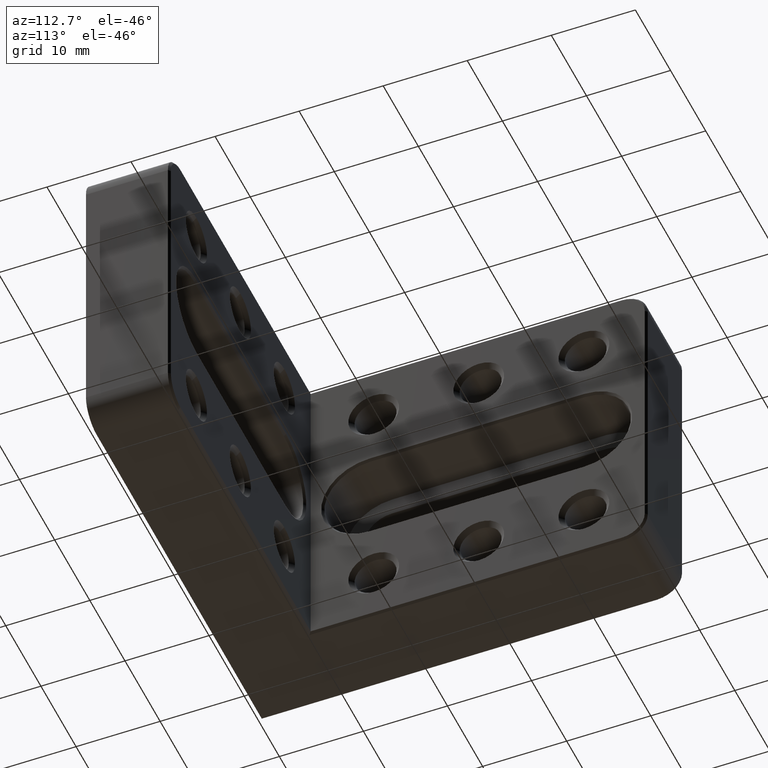
[diagram: clean part render]
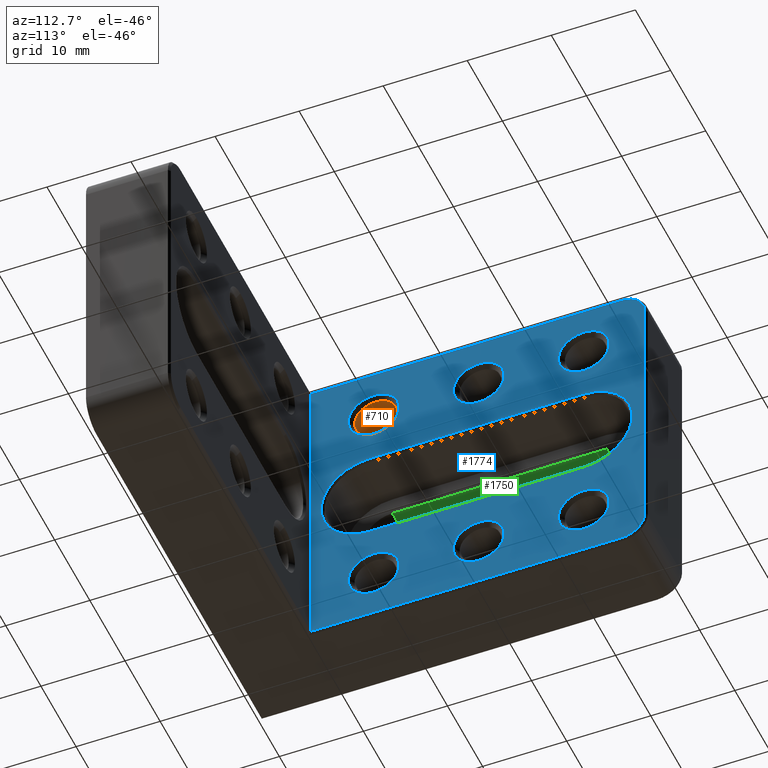
[diagram: same view with three faces highlighted in distinct colors, each labeled with its STEP entity id]
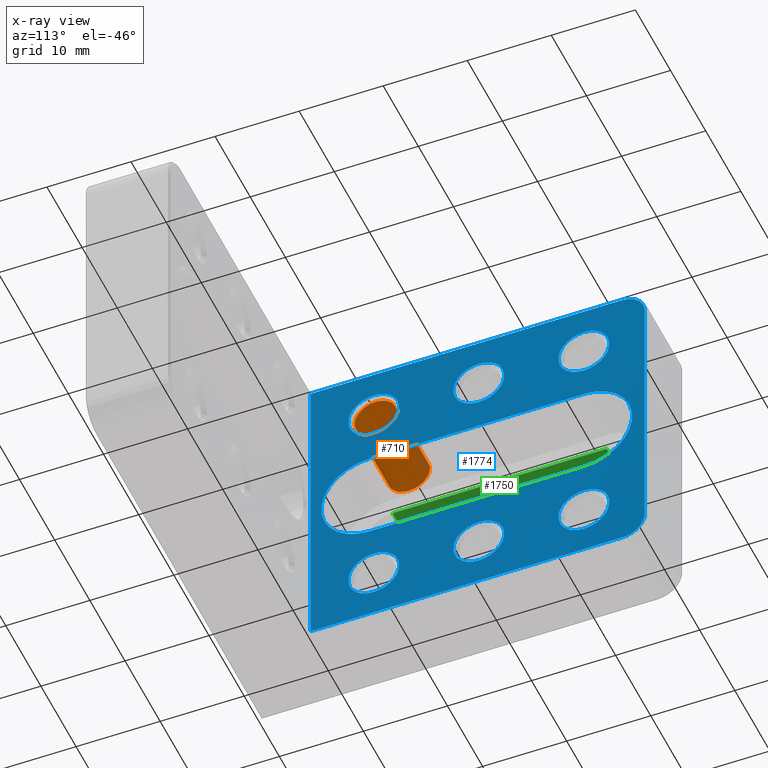
[diagram: x-ray of the same camera — body ghosted, the three highlighted faces saturated]
A machine part, auxiliary view with three faces highlighted in distinct colors.
The next image is the same camera in x-ray (body ghosted, the three faces saturated) — at least one of them is partly hidden behind the body in this view.
Their STEP definitions:

[orange] entity #710 — the highlighted cylindrical surface (bore or boss wall) has radius 2.5 mm, axis along (1, -0, -0).
#46 = CARTESIAN_POINT ( 'NONE',  ( -25.00000000000000711, 17.50000000000000000, 12.50000000000000355 ) ) ;
#205 = DIRECTION ( 'NONE',  ( 1.000000000000000000, -0.000000000000000000, -1.369518533665900312E-16 ) ) ;
#281 = DIRECTION ( 'NONE',  ( 0.000000000000000000, 0.000000000000000000, -1.000000000000000000 ) ) ;
#298 = VERTEX_POINT ( 'NONE', #599 ) ;
#368 = CARTESIAN_POINT ( 'NONE',  ( -15.52500000000003055, 17.50000000000000000, 12.50000000000000178 ) ) ;
#415 = AXIS2_PLACEMENT_3D ( 'NONE', #368, #205, #902 ) ;
#453 = AXIS2_PLACEMENT_3D ( 'NONE', #2067, #501, #611 ) ;
#455 = AXIS2_PLACEMENT_3D ( 'NONE', #46, #1346, #281 ) ;
#501 = DIRECTION ( 'NONE',  ( 1.000000000000000000, -0.000000000000000000, -1.369518533665900312E-16 ) ) ;
#556 = VERTEX_POINT ( 'NONE', #714 ) ;
#599 = CARTESIAN_POINT ( 'NONE',  ( -25.00000000000000711, 17.50000000000000000, 10.00000000000000533 ) ) ;
#611 = DIRECTION ( 'NONE',  ( 0.000000000000000000, 0.000000000000000000, -1.000000000000000000 ) ) ;
#627 = FACE_OUTER_BOUND ( 'NONE', #645, .T. ) ;
#645 = EDGE_LOOP ( 'NONE', ( #1151 ) ) ;
#710 = ADVANCED_FACE ( 'NONE', ( #627, #1765 ), #1597, .F. ) ;
#714 = CARTESIAN_POINT ( 'NONE',  ( -15.52500000000003055, 17.50000000000000000, 10.00000000000001421 ) ) ;
#831 = ORIENTED_EDGE ( 'NONE', *, *, #893, .T. ) ;
#893 = EDGE_CURVE ( 'NONE', #556, #556, #1068, .T. ) ;
#902 = DIRECTION ( 'NONE',  ( 0.000000000000000000, 0.000000000000000000, -1.000000000000000000 ) ) ;
#1068 = CIRCLE ( 'NONE', #415, 2.499999999999988454 ) ;
#1151 = ORIENTED_EDGE ( 'NONE', *, *, #1624, .F. ) ;
#1267 = EDGE_LOOP ( 'NONE', ( #831 ) ) ;
#1346 = DIRECTION ( 'NONE',  ( 1.000000000000000000, -0.000000000000000000, -1.369518533665900312E-16 ) ) ;
#1597 = CYLINDRICAL_SURFACE ( 'NONE', #453, 2.499999999999993339 ) ;
#1624 = EDGE_CURVE ( 'NONE', #298, #298, #2011, .T. ) ;
#1765 = FACE_OUTER_BOUND ( 'NONE', #1267, .T. ) ;
#2011 = CIRCLE ( 'NONE', #455, 2.499999999999998668 ) ;
#2067 = CARTESIAN_POINT ( 'NONE',  ( -15.00000000000000533, 17.50000000000000000, 12.50000000000000178 ) ) ;

[blue] entity #1774 — the highlighted planar face has unit normal (-1, 0, 0).
#21 = EDGE_CURVE ( 'NONE', #1565, #1565, #707, .T. ) ;
#42 = CARTESIAN_POINT ( 'NONE',  ( -15.00000000000000355, 10.00000000000000000, 18.75000000000000000 ) ) ;
#72 = CIRCLE ( 'NONE', #1840, 5.750000000000046185 ) ;
#89 = VERTEX_POINT ( 'NONE', #735 ) ;
#113 = CIRCLE ( 'NONE', #2076, 3.024999999999999911 ) ;
#124 = FACE_BOUND ( 'NONE', #1386, .T. ) ;
#132 = CARTESIAN_POINT ( 'NONE',  ( -15.00000000000000355, 42.50000000000000000, 9.475000000000003197 ) ) ;
#136 = EDGE_CURVE ( 'NONE', #1698, #1698, #1761, .T. ) ;
#137 = DIRECTION ( 'NONE',  ( 0.000000000000000000, -1.000000000000000000, 0.000000000000000000 ) ) ;
#142 = VERTEX_POINT ( 'NONE', #1212 ) ;
#152 = CARTESIAN_POINT ( 'NONE',  ( -15.00000000000000533, 17.00000000000000355, 5.750000000000044409 ) ) ;
#196 = DIRECTION ( 'NONE',  ( -2.329152893270168339E-32, -1.000000000000000000, -1.700709290173340903E-16 ) ) ;
#197 = ORIENTED_EDGE ( 'NONE', *, *, #1971, .T. ) ;
#221 = CARTESIAN_POINT ( 'NONE',  ( -15.00000000000000355, 49.75000000000000000, 16.00000000000000000 ) ) ;
#241 = CARTESIAN_POINT ( 'NONE',  ( -15.00000000000000888, 50.00000000000000000, -18.75000000000000000 ) ) ;
#247 = CARTESIAN_POINT ( 'NONE',  ( -15.00000000000000355, 47.00000000000000000, 16.00000000000000000 ) ) ;
#250 = VERTEX_POINT ( 'NONE', #152 ) ;
#260 = EDGE_CURVE ( 'NONE', #1826, #1940, #1606, .T. ) ;
#282 = DIRECTION ( 'NONE',  ( 0.000000000000000000, 0.000000000000000000, -1.000000000000000000 ) ) ;
#302 = FACE_BOUND ( 'NONE', #1410, .T. ) ;
#304 = DIRECTION ( 'NONE',  ( 0.000000000000000000, 0.000000000000000000, 1.000000000000000000 ) ) ;
#314 = FACE_BOUND ( 'NONE', #1189, .T. ) ;
#315 = ORIENTED_EDGE ( 'NONE', *, *, #614, .F. ) ;
#343 = EDGE_LOOP ( 'NONE', ( #1525 ) ) ;
#355 = AXIS2_PLACEMENT_3D ( 'NONE', #1459, #1278, #1107 ) ;
#375 = DIRECTION ( 'NONE',  ( 0.000000000000000000, 0.000000000000000000, -1.000000000000000000 ) ) ;
#424 = ORIENTED_EDGE ( 'NONE', *, *, #260, .T. ) ;
#425 = DIRECTION ( 'NONE',  ( 0.000000000000000000, 0.000000000000000000, 1.000000000000000000 ) ) ;
#471 = AXIS2_PLACEMENT_3D ( 'NONE', #797, #642, #958 ) ;
#473 = FACE_BOUND ( 'NONE', #1719, .T. ) ;
#482 = DIRECTION ( 'NONE',  ( 1.000000000000000000, -0.000000000000000000, -1.369518533665900312E-16 ) ) ;
#492 = DIRECTION ( 'NONE',  ( -1.000000000000000000, 0.000000000000000000, 1.369518533665900312E-16 ) ) ;
#494 = CARTESIAN_POINT ( 'NONE',  ( -15.00000000000000888, 47.00000000000000000, -18.75000000000000355 ) ) ;
#518 = VECTOR ( 'NONE', #1550, 1000.000000000000000 ) ;
#524 = AXIS2_PLACEMENT_3D ( 'NONE', #745, #585, #1397 ) ;
#541 = ORIENTED_EDGE ( 'NONE', *, *, #796, .T. ) ;
#562 = DIRECTION ( 'NONE',  ( 0.000000000000000000, 0.000000000000000000, -1.000000000000000000 ) ) ;
#578 = EDGE_CURVE ( 'NONE', #1341, #2064, #1305, .T. ) ;
#582 = DIRECTION ( 'NONE',  ( 1.369518533665900312E-16, 0.000000000000000000, 1.000000000000000000 ) ) ;
#585 = DIRECTION ( 'NONE',  ( -1.000000000000000000, 0.000000000000000000, 1.369518533665900312E-16 ) ) ;
#590 = VERTEX_POINT ( 'NONE', #1547 ) ;
#606 = CIRCLE ( 'NONE', #1598, 2.749999999999999112 ) ;
#614 = EDGE_CURVE ( 'NONE', #590, #590, #113, .T. ) ;
#618 = CARTESIAN_POINT ( 'NONE',  ( -15.00000000000000355, 30.00000000000000355, 12.50000000000000178 ) ) ;
#633 = LINE ( 'NONE', #1135, #1635 ) ;
#642 = DIRECTION ( 'NONE',  ( 1.000000000000000000, -0.000000000000000000, -1.369518533665900312E-16 ) ) ;
#650 = VECTOR ( 'NONE', #689, 1000.000000000000000 ) ;
#655 = VERTEX_POINT ( 'NONE', #1458 ) ;
#687 = AXIS2_PLACEMENT_3D ( 'NONE', #1121, #1461, #304 ) ;
#688 = EDGE_LOOP ( 'NONE', ( #950 ) ) ;
#689 = DIRECTION ( 'NONE',  ( -1.369518533665900312E-16, -0.000000000000000000, -1.000000000000000000 ) ) ;
#707 = CIRCLE ( 'NONE', #1929, 3.024999999999996358 ) ;
#708 = DIRECTION ( 'NONE',  ( 1.000000000000000000, -0.000000000000000000, 1.369518533665900312E-16 ) ) ;
#709 = EDGE_CURVE ( 'NONE', #880, #250, #72, .T. ) ;
#718 = DIRECTION ( 'NONE',  ( 1.000000000000000000, -0.000000000000000000, -1.369518533665900312E-16 ) ) ;
#727 = DIRECTION ( 'NONE',  ( 1.000000000000000000, -0.000000000000000000, 1.369518533665900312E-16 ) ) ;
#735 = CARTESIAN_POINT ( 'NONE',  ( -15.00000000000000355, 42.50000000000000000, -15.52500000000000213 ) ) ;
#745 = CARTESIAN_POINT ( 'NONE',  ( -15.00000000000000533, 42.50000000000000000, 2.054277800498851503E-15 ) ) ;
#770 = CARTESIAN_POINT ( 'NONE',  ( -15.00000000000000711, 17.00000000000000355, -1.402614629381893049E-15 ) ) ;
#778 = CARTESIAN_POINT ( 'NONE',  ( -15.00000000000000355, 17.50000000000000000, 9.475000000000003197 ) ) ;
#781 = FACE_OUTER_BOUND ( 'NONE', #852, .T. ) ;
#782 = ORIENTED_EDGE ( 'NONE', *, *, #1024, .T. ) ;
#790 = VERTEX_POINT ( 'NONE', #42 ) ;
#796 = EDGE_CURVE ( 'NONE', #790, #655, #1831, .T. ) ;
#797 = CARTESIAN_POINT ( 'NONE',  ( -15.00000000000000355, 42.50000000000000000, 12.50000000000000178 ) ) ;
#809 = EDGE_LOOP ( 'NONE', ( #315 ) ) ;
#819 = VECTOR ( 'NONE', #196, 1000.000000000000000 ) ;
#830 = CARTESIAN_POINT ( 'NONE',  ( -15.00000000000000888, 49.75000000000000000, -16.00000000000000000 ) ) ;
#852 = EDGE_LOOP ( 'NONE', ( #541, #1922, #424, #1771, #782, #1608 ) ) ;
#861 = CARTESIAN_POINT ( 'NONE',  ( -15.00000000000000711, 17.00000000000000355, -5.750000000000047962 ) ) ;
#877 = CIRCLE ( 'NONE', #471, 3.024999999999999911 ) ;
#880 = VERTEX_POINT ( 'NONE', #861 ) ;
#915 = AXIS2_PLACEMENT_3D ( 'NONE', #1952, #1480, #375 ) ;
#947 = DIRECTION ( 'NONE',  ( 1.397491735962100675E-32, 1.000000000000000000, 1.020425574104004492E-16 ) ) ;
#950 = ORIENTED_EDGE ( 'NONE', *, *, #21, .F. ) ;
#958 = DIRECTION ( 'NONE',  ( 0.000000000000000000, 0.000000000000000000, -1.000000000000000000 ) ) ;
#989 = ORIENTED_EDGE ( 'NONE', *, *, #1222, .F. ) ;
#998 = EDGE_CURVE ( 'NONE', #1940, #1551, #2054, .T. ) ;
#1024 = EDGE_CURVE ( 'NONE', #1551, #142, #606, .T. ) ;
#1031 = CIRCLE ( 'NONE', #1875, 3.024999999999999911 ) ;
#1036 = CARTESIAN_POINT ( 'NONE',  ( -15.00000000000000888, 10.00000000000000000, -19.00000000000000000 ) ) ;
#1058 = CARTESIAN_POINT ( 'NONE',  ( -15.00000000000000355, 30.00000000000000355, -15.52499999999999858 ) ) ;
#1089 = CARTESIAN_POINT ( 'NONE',  ( -15.00000000000000355, 30.00000000000000355, -12.50000000000000178 ) ) ;
#1098 = DIRECTION ( 'NONE',  ( 0.000000000000000000, 0.000000000000000000, -1.000000000000000000 ) ) ;
#1099 = FACE_BOUND ( 'NONE', #809, .T. ) ;
#1107 = DIRECTION ( 'NONE',  ( 1.369518533665900312E-16, 0.000000000000000000, 1.000000000000000000 ) ) ;
#1121 = CARTESIAN_POINT ( 'NONE',  ( -15.00000000000000888, 47.00000000000000000, -16.00000000000000000 ) ) ;
#1128 = DIRECTION ( 'NONE',  ( 0.000000000000000000, 0.000000000000000000, 1.000000000000000000 ) ) ;
#1129 = DIRECTION ( 'NONE',  ( 0.000000000000000000, 0.000000000000000000, -1.000000000000000000 ) ) ;
#1135 = CARTESIAN_POINT ( 'NONE',  ( -15.00000000000000533, 50.00000000000000000, 5.750000000000047073 ) ) ;
#1163 = ORIENTED_EDGE ( 'NONE', *, *, #578, .T. ) ;
#1180 = EDGE_CURVE ( 'NONE', #250, #1341, #633, .T. ) ;
#1189 = EDGE_LOOP ( 'NONE', ( #1576, #1163, #197, #1787 ) ) ;
#1206 = CARTESIAN_POINT ( 'NONE',  ( -15.00000000000000711, 42.50000000000000000, -5.750000000000043521 ) ) ;
#1212 = CARTESIAN_POINT ( 'NONE',  ( -15.00000000000000355, 47.00000000000000000, 18.75000000000000000 ) ) ;
#1214 = DIRECTION ( 'NONE',  ( 1.000000000000000000, -0.000000000000000000, -1.369518533665900312E-16 ) ) ;
#1222 = EDGE_CURVE ( 'NONE', #89, #89, #1562, .T. ) ;
#1225 = VECTOR ( 'NONE', #582, 1000.000000000000000 ) ;
#1278 = DIRECTION ( 'NONE',  ( -1.000000000000000000, 0.000000000000000000, 1.369518533665900312E-16 ) ) ;
#1305 = CIRCLE ( 'NONE', #524, 5.750000000000045297 ) ;
#1341 = VERTEX_POINT ( 'NONE', #2095 ) ;
#1375 = ORIENTED_EDGE ( 'NONE', *, *, #1888, .F. ) ;
#1386 = EDGE_LOOP ( 'NONE', ( #1481 ) ) ;
#1397 = DIRECTION ( 'NONE',  ( 0.000000000000000000, 0.000000000000000000, 1.000000000000000000 ) ) ;
#1410 = EDGE_LOOP ( 'NONE', ( #989 ) ) ;
#1419 = EDGE_CURVE ( 'NONE', #2088, #2088, #877, .T. ) ;
#1458 = CARTESIAN_POINT ( 'NONE',  ( -15.00000000000000888, 10.00000000000000000, -18.75000000000000000 ) ) ;
#1459 = CARTESIAN_POINT ( 'NONE',  ( -15.00000000000000888, 50.00000000000000000, -19.00000000000000000 ) ) ;
#1461 = DIRECTION ( 'NONE',  ( 1.000000000000000000, -0.000000000000000000, -1.369518533665900312E-16 ) ) ;
#1480 = DIRECTION ( 'NONE',  ( 1.000000000000000000, -0.000000000000000000, 1.369518533665900312E-16 ) ) ;
#1481 = ORIENTED_EDGE ( 'NONE', *, *, #136, .F. ) ;
#1525 = ORIENTED_EDGE ( 'NONE', *, *, #1419, .F. ) ;
#1547 = CARTESIAN_POINT ( 'NONE',  ( -15.00000000000000355, 17.50000000000000000, -15.52500000000000213 ) ) ;
#1550 = DIRECTION ( 'NONE',  ( 0.000000000000000000, 1.000000000000000000, 0.000000000000000000 ) ) ;
#1551 = VERTEX_POINT ( 'NONE', #221 ) ;
#1562 = CIRCLE ( 'NONE', #915, 3.024999999999999911 ) ;
#1564 = CARTESIAN_POINT ( 'NONE',  ( -15.00000000000000355, 49.75000000000000000, 16.00000000000000355 ) ) ;
#1565 = VERTEX_POINT ( 'NONE', #1058 ) ;
#1576 = ORIENTED_EDGE ( 'NONE', *, *, #1180, .T. ) ;
#1598 = AXIS2_PLACEMENT_3D ( 'NONE', #247, #1214, #425 ) ;
#1606 = CIRCLE ( 'NONE', #687, 2.750000000000002665 ) ;
#1608 = ORIENTED_EDGE ( 'NONE', *, *, #1867, .T. ) ;
#1635 = VECTOR ( 'NONE', #947, 1000.000000000000000 ) ;
#1657 = LINE ( 'NONE', #1678, #819 ) ;
#1678 = CARTESIAN_POINT ( 'NONE',  ( -15.00000000000000711, 50.00000000000000000, -5.750000000000041744 ) ) ;
#1694 = EDGE_CURVE ( 'NONE', #655, #1826, #1712, .T. ) ;
#1698 = VERTEX_POINT ( 'NONE', #2013 ) ;
#1712 = LINE ( 'NONE', #241, #518 ) ;
#1719 = EDGE_LOOP ( 'NONE', ( #1375 ) ) ;
#1761 = CIRCLE ( 'NONE', #1893, 3.024999999999996358 ) ;
#1766 = PLANE ( 'NONE',  #355 ) ;
#1771 = ORIENTED_EDGE ( 'NONE', *, *, #998, .T. ) ;
#1774 = ADVANCED_FACE ( 'NONE', ( #314, #302, #2068, #1099, #1901, #124, #781, #473 ), #1766, .F. ) ;
#1787 = ORIENTED_EDGE ( 'NONE', *, *, #709, .T. ) ;
#1805 = VECTOR ( 'NONE', #137, 1000.000000000000000 ) ;
#1826 = VERTEX_POINT ( 'NONE', #494 ) ;
#1831 = LINE ( 'NONE', #1036, #650 ) ;
#1840 = AXIS2_PLACEMENT_3D ( 'NONE', #770, #492, #1128 ) ;
#1867 = EDGE_CURVE ( 'NONE', #142, #790, #2103, .T. ) ;
#1875 = AXIS2_PLACEMENT_3D ( 'NONE', #1936, #482, #1129 ) ;
#1888 = EDGE_CURVE ( 'NONE', #1897, #1897, #1031, .T. ) ;
#1893 = AXIS2_PLACEMENT_3D ( 'NONE', #618, #718, #562 ) ;
#1897 = VERTEX_POINT ( 'NONE', #778 ) ;
#1901 = FACE_BOUND ( 'NONE', #343, .T. ) ;
#1922 = ORIENTED_EDGE ( 'NONE', *, *, #1694, .T. ) ;
#1929 = AXIS2_PLACEMENT_3D ( 'NONE', #1089, #708, #282 ) ;
#1936 = CARTESIAN_POINT ( 'NONE',  ( -15.00000000000000355, 17.50000000000000000, 12.50000000000000178 ) ) ;
#1940 = VERTEX_POINT ( 'NONE', #830 ) ;
#1952 = CARTESIAN_POINT ( 'NONE',  ( -15.00000000000000355, 42.50000000000000000, -12.50000000000000178 ) ) ;
#1971 = EDGE_CURVE ( 'NONE', #2064, #880, #1657, .T. ) ;
#2013 = CARTESIAN_POINT ( 'NONE',  ( -15.00000000000000355, 30.00000000000000355, 9.475000000000006750 ) ) ;
#2042 = CARTESIAN_POINT ( 'NONE',  ( -15.00000000000000355, 17.50000000000000000, -12.50000000000000178 ) ) ;
#2054 = LINE ( 'NONE', #1564, #1225 ) ;
#2064 = VERTEX_POINT ( 'NONE', #1206 ) ;
#2068 = FACE_BOUND ( 'NONE', #688, .T. ) ;
#2076 = AXIS2_PLACEMENT_3D ( 'NONE', #2042, #727, #1098 ) ;
#2088 = VERTEX_POINT ( 'NONE', #132 ) ;
#2091 = CARTESIAN_POINT ( 'NONE',  ( -15.00000000000000355, 50.00000000000000000, 18.75000000000000000 ) ) ;
#2095 = CARTESIAN_POINT ( 'NONE',  ( -15.00000000000000533, 42.50000000000000000, 5.750000000000046185 ) ) ;
#2103 = LINE ( 'NONE', #2091, #1805 ) ;

[green] entity #1750 — the highlighted planar face has unit normal (0, -0, 1).
#17 = CARTESIAN_POINT ( 'NONE',  ( -21.50000000000000355, 42.50000000000000000, 3.300000000000002931 ) ) ;
#55 = ORIENTED_EDGE ( 'NONE', *, *, #454, .F. ) ;
#109 = CARTESIAN_POINT ( 'NONE',  ( -61.50000000000000711, 42.50000000000000000, 3.300000000000008704 ) ) ;
#117 = CARTESIAN_POINT ( 'NONE',  ( -21.50000000000000355, 42.50000000000000000, 3.300000000000002931 ) ) ;
#163 = DIRECTION ( 'NONE',  ( 1.000000000000000000, -0.000000000000000000, -1.369518533665900312E-16 ) ) ;
#198 = LINE ( 'NONE', #1187, #1614 ) ;
#202 = EDGE_LOOP ( 'NONE', ( #2038, #1631, #262, #55 ) ) ;
#262 = ORIENTED_EDGE ( 'NONE', *, *, #1377, .F. ) ;
#350 = AXIS2_PLACEMENT_3D ( 'NONE', #586, #752, #1087 ) ;
#360 = DIRECTION ( 'NONE',  ( -1.242214876410756338E-32, -1.000000000000000000, -1.360567432138672574E-16 ) ) ;
#431 = DIRECTION ( 'NONE',  ( 1.000000000000000000, -0.000000000000000000, -1.369518533665900312E-16 ) ) ;
#432 = VERTEX_POINT ( 'NONE', #1345 ) ;
#454 = EDGE_CURVE ( 'NONE', #432, #1332, #198, .T. ) ;
#576 = EDGE_CURVE ( 'NONE', #1273, #1423, #1567, .T. ) ;
#586 = CARTESIAN_POINT ( 'NONE',  ( -61.50000000000000711, 42.50000000000000000, 3.300000000000008704 ) ) ;
#631 = LINE ( 'NONE', #1950, #1558 ) ;
#752 = DIRECTION ( 'NONE',  ( 1.369518533665900312E-16, -1.360567432138672574E-16, 1.000000000000000000 ) ) ;
#896 = VECTOR ( 'NONE', #431, 1000.000000000000000 ) ;
#906 = PLANE ( 'NONE',  #350 ) ;
#959 = VECTOR ( 'NONE', #1237, 1000.000000000000000 ) ;
#1087 = DIRECTION ( 'NONE',  ( 1.000000000000000000, 0.000000000000000000, -1.369518533665900312E-16 ) ) ;
#1187 = CARTESIAN_POINT ( 'NONE',  ( -25.00000000000000355, 9.999999999999996447, 3.299999999999997158 ) ) ;
#1237 = DIRECTION ( 'NONE',  ( 0.000000000000000000, -1.000000000000000000, -1.360567432138672574E-16 ) ) ;
#1272 = CARTESIAN_POINT ( 'NONE',  ( -21.50000000000000355, 17.00000000000000711, 3.299999999999999378 ) ) ;
#1273 = VERTEX_POINT ( 'NONE', #17 ) ;
#1332 = VERTEX_POINT ( 'NONE', #1662 ) ;
#1345 = CARTESIAN_POINT ( 'NONE',  ( -25.00000000000000000, 42.50000000000000000, 3.300000000000003375 ) ) ;
#1377 = EDGE_CURVE ( 'NONE', #1332, #1423, #631, .T. ) ;
#1423 = VERTEX_POINT ( 'NONE', #1272 ) ;
#1557 = LINE ( 'NONE', #109, #896 ) ;
#1558 = VECTOR ( 'NONE', #163, 1000.000000000000000 ) ;
#1567 = LINE ( 'NONE', #117, #959 ) ;
#1568 = FACE_OUTER_BOUND ( 'NONE', #202, .T. ) ;
#1614 = VECTOR ( 'NONE', #360, 1000.000000000000000 ) ;
#1631 = ORIENTED_EDGE ( 'NONE', *, *, #576, .T. ) ;
#1653 = EDGE_CURVE ( 'NONE', #432, #1273, #1557, .T. ) ;
#1662 = CARTESIAN_POINT ( 'NONE',  ( -25.00000000000000355, 17.00000000000000711, 3.299999999999998046 ) ) ;
#1750 = ADVANCED_FACE ( 'NONE', ( #1568 ), #906, .F. ) ;
#1950 = CARTESIAN_POINT ( 'NONE',  ( -61.50000000000000711, 17.00000000000000711, 3.300000000000005151 ) ) ;
#2038 = ORIENTED_EDGE ( 'NONE', *, *, #1653, .T. ) ;